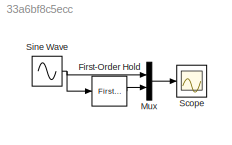
MODEL slx_33a6bf8c5ecc
KIND model
CONFIG AbsTol = auto
CONFIG EnableMultiTasking = off
CONFIG FixedStep = 0.001
CONFIG MaxStep = auto
CONFIG MinStep = auto
CONFIG RelTol = 1e-3
CONFIG SampleTimeConstraint = Unconstrained
CONFIG Solver = FixedStepAuto
CONFIG SolverName = FixedStepAuto
CONFIG StartTime = 0.0
CONFIG StopTime = 10.0
BLOCK [Reference] First-Order Hold  REF=simulink/Discrete/First-Order
Hold
  DisableCoverage = on
  Ports = [1, 1]
  SourceBlock = simulink/Discrete/First-Order\nHold
  SourceProductBaseCode = SL
  SourceProductName = Simulink
  SourceType = First-Order Hold
BLOCK [Mux] Mux
  DisplayOption = bar
  Inputs = 2
  Ports = [2, 1]
BLOCK [Scope] Scope
  Floating = off
  NumInputPorts = 1
  Ports = [1]
  ScopeSpecificationString = Simulink.scopes.TimeScopeBlockCfg('CurrentConfiguration', extmgr.ConfigurationSet(extmgr.Configuration('Core','General UI',true),extmgr.Configuration('Core','Source UI',true),extmgr.Configuration('Sources','WiredSimulink',true),extmgr.Configuration('Visuals','Time Domain',true,'SerializedDisplays',{struct('MinYLimReal','-1.49985','MaxYLimReal','1.52048','YLabelReal','','MinYLimMag','0.00000','MaxY...<+1373ch>
BLOCK [Sin] Sine Wave
  Ports = [0, 1]
  SampleTime = 0
LINE First-Order Hold:1 -> Mux:2
LINE Mux:1 -> Scope:1
NET Sine Wave:1 -> First-Order Hold:1, Mux:1
note: NET lines group one-source signal fan-out (src -> all destinations, sorted); 1:1 wires keep LINE
